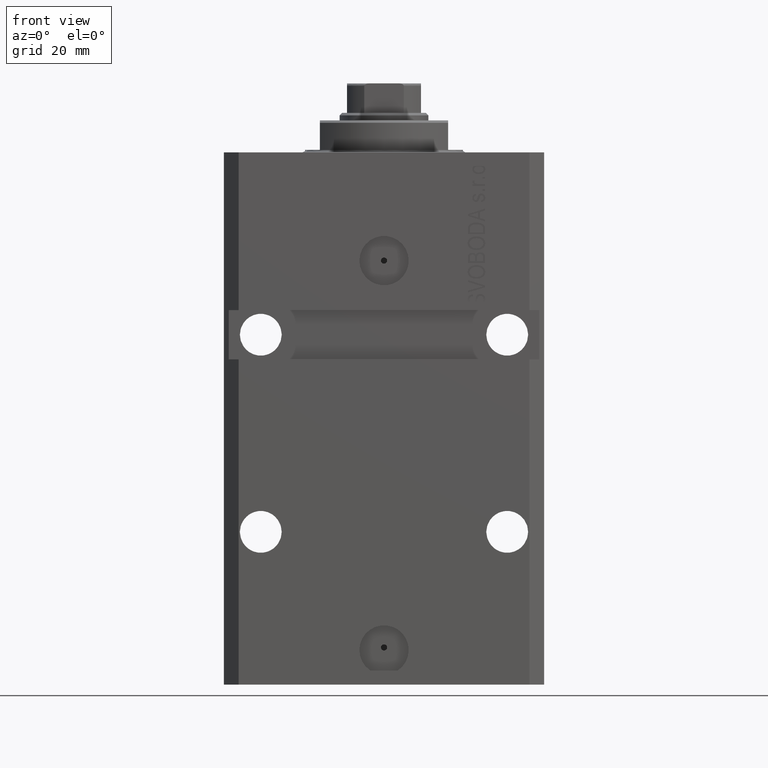
[diagram: clean part render]
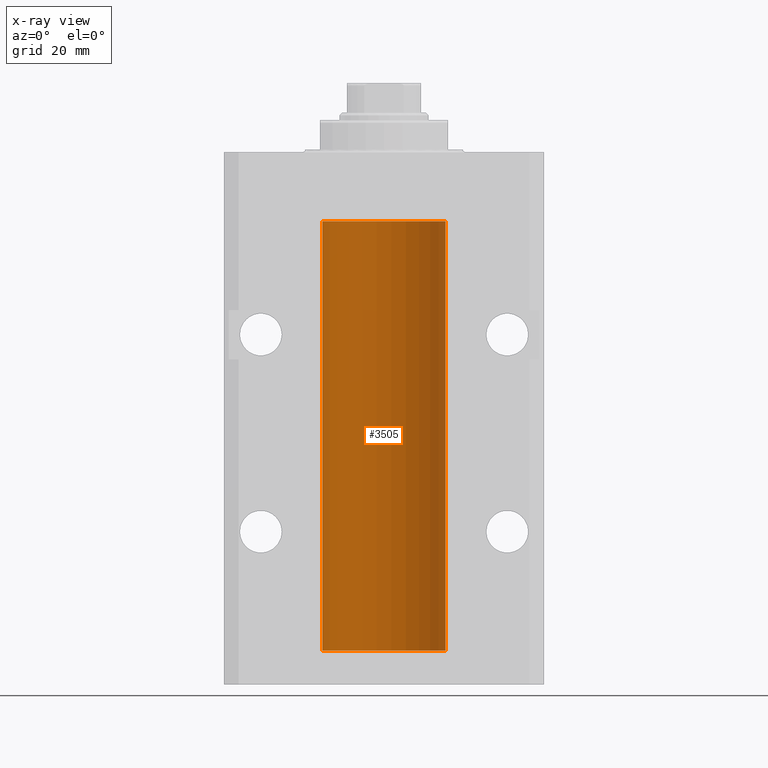
[diagram: x-ray — body ghosted, one internal face saturated and labeled with its STEP entity id]
A machine part, front view, then the same camera in x-ray: the body is ghosted and one INTERNAL B-rep face — a face not visible from any outside direction — is saturated and labeled: STEP entity #3505.
In plain terms, the highlighted cylindrical surface (partial cylindrical patch) has radius 12.5 mm, axis along (0, 0, 1).
Its self-contained STEP definition (entity closure, byte-faithful):
#848 = CARTESIAN_POINT ( 'NONE',  ( -12.50000000000000000, 1.530808498934191127E-15, -13.99999999999999822 ) ) ;
#903 = CARTESIAN_POINT ( 'NONE',  ( -12.50000000000000000, 1.530808498934191127E-15, -101.0999999999999943 ) ) ;
#1004 = CARTESIAN_POINT ( 'NONE',  ( -12.49011732893843529, 0.5003763274120274218, -22.38348111289288056 ) ) ;
#1601 = DIRECTION ( 'NONE',  ( -0.000000000000000000, -0.000000000000000000, 1.000000000000000000 ) ) ;
#1713 = CARTESIAN_POINT ( 'NONE',  ( -12.49915784441387068, 0.1636601911727947889, -21.39126818989430490 ) ) ;
#2887 = CARTESIAN_POINT ( 'NONE',  ( -12.49625855304193855, 0.3150454781037992369, -95.45402800297485157 ) ) ;
#3210 = CARTESIAN_POINT ( 'NONE',  ( -12.50000000000017941, 3.883381774819353300E-13, -96.62500000000359535 ) ) ;
#3505 = ADVANCED_FACE ( 'NONE', ( #20669 ), #35388, .F. ) ;
#5100 = CARTESIAN_POINT ( 'NONE',  ( -12.48520330846397997, 0.6088355886774127201, -22.16325431852561678 ) ) ;
#5571 = CARTESIAN_POINT ( 'NONE',  ( -12.50000000000017941, 3.883381646606358354E-13, -22.62500000000358824 ) ) ;
#5651 = CIRCLE ( 'NONE', #11830, 12.50000000000000000 ) ;
#6387 = DIRECTION ( 'NONE',  ( -0.000000000000000000, -0.000000000000000000, 1.000000000000000000 ) ) ;
#6916 = VERTEX_POINT ( 'NONE', #848 ) ;
#6963 = CIRCLE ( 'NONE', #33923, 12.50000000000000000 ) ;
#7870 = CARTESIAN_POINT ( 'NONE',  ( 12.50000000000000000, 0.000000000000000000, -13.99999999999999822 ) ) ;
#8420 = EDGE_LOOP ( 'NONE', ( #29382, #36445, #36833, #11185, #9563, #32653, #16821, #15909 ) ) ;
#8476 = CARTESIAN_POINT ( 'NONE',  ( -12.49631005746706691, 0.3253680783018527145, -22.55856740465392818 ) ) ;
#9183 = CARTESIAN_POINT ( 'NONE',  ( -12.48810268015257741, 0.5573155909661345886, -21.67347410093868376 ) ) ;
#9488 = VECTOR ( 'NONE', #1601, 1000.000000000000000 ) ;
#9563 = ORIENTED_EDGE ( 'NONE', *, *, #21819, .F. ) ;
#10136 = CARTESIAN_POINT ( 'NONE',  ( -12.48810268015257208, 0.5573155909661239304, -95.67347410093866245 ) ) ;
#10382 = CARTESIAN_POINT ( 'NONE',  ( -12.50000000000000000, -1.533333011935503619E-14, -95.37500000000000000 ) ) ;
#10699 = CARTESIAN_POINT ( 'NONE',  ( -12.50000000000000000, 1.530808498934191127E-15, -101.0999999999999943 ) ) ;
#11185 = ORIENTED_EDGE ( 'NONE', *, *, #23877, .T. ) ;
#11830 = AXIS2_PLACEMENT_3D ( 'NONE', #34826, #19859, #12863 ) ;
#12546 = B_SPLINE_CURVE_WITH_KNOTS ( 'NONE', 3,
 ( #38139, #30674, #1713, #16435, #27536, #9183, #31154, #35005, #5100, #23913, #1004, #8476, #45867, #5571 ),
 .UNSPECIFIED., .F., .F.,
 ( 4, 2, 2, 2, 2, 2, 4 ),
 ( 1.915261233043748719E-20, 0.0002442924852390970162, 0.0004885849704781940325, 0.0009771699409563878481, 0.001221462426195484702, 0.001465754911434581772, 0.001954339881912775696 ),
 .UNSPECIFIED. ) ;
#12863 = DIRECTION ( 'NONE',  ( 1.000000000000000000, 0.000000000000000000, 0.000000000000000000 ) ) ;
#13049 = CARTESIAN_POINT ( 'NONE',  ( 0.000000000000000000, 0.000000000000000000, -101.0999999999999943 ) ) ;
#13957 = AXIS2_PLACEMENT_3D ( 'NONE', #14172, #28887, #30289 ) ;
#14009 = CARTESIAN_POINT ( 'NONE',  ( -12.48436813453758809, 0.6249418250771133776, -95.83668996798924411 ) ) ;
#14172 = CARTESIAN_POINT ( 'NONE',  ( 0.000000000000000000, 0.000000000000000000, -101.0999999999999943 ) ) ;
#14338 = DIRECTION ( 'NONE',  ( -0.000000000000000000, -0.000000000000000000, 1.000000000000000000 ) ) ;
#14593 = CARTESIAN_POINT ( 'NONE',  ( -12.50000000000000000, -1.533333011935503619E-14, -95.37500000000000000 ) ) ;
#14880 = EDGE_CURVE ( 'NONE', #28207, #35662, #25928, .T. ) ;
#14942 = VERTEX_POINT ( 'NONE', #15766 ) ;
#15598 = EDGE_CURVE ( 'NONE', #33377, #32588, #29017, .T. ) ;
#15766 = CARTESIAN_POINT ( 'NONE',  ( -12.50000000000017941, 3.883381646606358354E-13, -22.62500000000358824 ) ) ;
#15909 = ORIENTED_EDGE ( 'NONE', *, *, #15598, .T. ) ;
#16435 = CARTESIAN_POINT ( 'NONE',  ( -12.49625855304194033, 0.3150454781038043439, -21.45402800297485513 ) ) ;
#16821 = ORIENTED_EDGE ( 'NONE', *, *, #37677, .F. ) ;
#17384 = CARTESIAN_POINT ( 'NONE',  ( -12.49915784441387068, 0.1636601911727893766, -95.39126818989430490 ) ) ;
#17857 = CARTESIAN_POINT ( 'NONE',  ( -12.48809959379011403, 0.5462151254764920916, -96.31461370481612505 ) ) ;
#18471 = VECTOR ( 'NONE', #6387, 1000.000000000000000 ) ;
#19859 = DIRECTION ( 'NONE',  ( 0.000000000000000000, 0.000000000000000000, 1.000000000000000000 ) ) ;
#20521 = EDGE_CURVE ( 'NONE', #46097, #14942, #12546, .T. ) ;
#20669 = FACE_OUTER_BOUND ( 'NONE', #8420, .T. ) ;
#21819 = EDGE_CURVE ( 'NONE', #46097, #6916, #34657, .T. ) ;
#23877 = EDGE_CURVE ( 'NONE', #35662, #6916, #5651, .T. ) ;
#23913 = CARTESIAN_POINT ( 'NONE',  ( -12.48809959379011580, 0.5462151254764976427, -22.31461370481611795 ) ) ;
#24472 = LINE ( 'NONE', #28103, #37300 ) ;
#24868 = CARTESIAN_POINT ( 'NONE',  ( -12.50000000000017941, 3.883381774819353300E-13, -96.62500000000359535 ) ) ;
#25192 = LINE ( 'NONE', #10699, #44500 ) ;
#25339 = CARTESIAN_POINT ( 'NONE',  ( -12.50000000000000000, 0.08260426088727979010, -95.37500000000004263 ) ) ;
#25583 = CARTESIAN_POINT ( 'NONE',  ( -12.50000000000000000, 5.362667643464675182E-18, -21.37499999999999645 ) ) ;
#25729 = EDGE_CURVE ( 'NONE', #35485, #32588, #24472, .T. ) ;
#25928 = LINE ( 'NONE', #36056, #18471 ) ;
#27536 = CARTESIAN_POINT ( 'NONE',  ( -12.49422197749724184, 0.3843754434364375916, -21.50047099568095632 ) ) ;
#28103 = CARTESIAN_POINT ( 'NONE',  ( -12.50000000000000000, 1.530808498934191127E-15, -101.0999999999999943 ) ) ;
#28207 = VERTEX_POINT ( 'NONE', #35917 ) ;
#28260 = DIRECTION ( 'NONE',  ( 0.000000000000000000, 0.000000000000000000, 1.000000000000000000 ) ) ;
#28887 = DIRECTION ( 'NONE',  ( -0.000000000000000000, -0.000000000000000000, 1.000000000000000000 ) ) ;
#29017 = B_SPLINE_CURVE_WITH_KNOTS ( 'NONE', 3,
 ( #10382, #25339, #17384, #2887, #32102, #10136, #14009, #47045, #36188, #17857, #29204, #43913, #32580, #24868 ),
 .UNSPECIFIED., .F., .F.,
 ( 4, 2, 2, 2, 2, 2, 4 ),
 ( 3.461883380293545058E-18, 0.0002442924852390828132, 0.0004885849704781621569, 0.0009771699409563503348, 0.001221462426195465186, 0.001465754911434580037, 0.001954339881912780900 ),
 .UNSPECIFIED. ) ;
#29204 = CARTESIAN_POINT ( 'NONE',  ( -12.49011732893843707, 0.5003763274120197613, -96.38348111289288056 ) ) ;
#29382 = ORIENTED_EDGE ( 'NONE', *, *, #25729, .F. ) ;
#30289 = DIRECTION ( 'NONE',  ( 1.000000000000000000, 0.000000000000000000, 0.000000000000000000 ) ) ;
#30674 = CARTESIAN_POINT ( 'NONE',  ( -12.50000000000000000, 0.08260426088729212746, -21.37500000000000000 ) ) ;
#31154 = CARTESIAN_POINT ( 'NONE',  ( -12.48436813453758809, 0.6249418250771192618, -21.83668996798922990 ) ) ;
#31708 = DIRECTION ( 'NONE',  ( -0.000000000000000000, -0.000000000000000000, 1.000000000000000000 ) ) ;
#32102 = CARTESIAN_POINT ( 'NONE',  ( -12.49422197749724006, 0.3843754434364255457, -95.50047099568097053 ) ) ;
#32580 = CARTESIAN_POINT ( 'NONE',  ( -12.49999999999999289, 0.1631761135151224562, -96.62499999999987210 ) ) ;
#32588 = VERTEX_POINT ( 'NONE', #3210 ) ;
#32653 = ORIENTED_EDGE ( 'NONE', *, *, #20521, .T. ) ;
#33377 = VERTEX_POINT ( 'NONE', #14593 ) ;
#33923 = AXIS2_PLACEMENT_3D ( 'NONE', #13049, #28260, #42485 ) ;
#34657 = LINE ( 'NONE', #903, #9488 ) ;
#34826 = CARTESIAN_POINT ( 'NONE',  ( 0.000000000000000000, 0.000000000000000000, -13.99999999999999822 ) ) ;
#35005 = CARTESIAN_POINT ( 'NONE',  ( -12.48436376893640620, 0.6250290278979917513, -22.08132082824473841 ) ) ;
#35388 = CYLINDRICAL_SURFACE ( 'NONE', #13957, 12.50000000000000000 ) ;
#35485 = VERTEX_POINT ( 'NONE', #47515 ) ;
#35662 = VERTEX_POINT ( 'NONE', #7870 ) ;
#35917 = CARTESIAN_POINT ( 'NONE',  ( 12.50000000000000000, 0.000000000000000000, -101.0999999999999943 ) ) ;
#36056 = CARTESIAN_POINT ( 'NONE',  ( 12.50000000000000000, 0.000000000000000000, -101.0999999999999943 ) ) ;
#36188 = CARTESIAN_POINT ( 'NONE',  ( -12.48520330846397997, 0.6088355886774068360, -96.16325431852560257 ) ) ;
#36445 = ORIENTED_EDGE ( 'NONE', *, *, #47731, .F. ) ;
#36833 = ORIENTED_EDGE ( 'NONE', *, *, #14880, .T. ) ;
#37300 = VECTOR ( 'NONE', #31708, 1000.000000000000000 ) ;
#37677 = EDGE_CURVE ( 'NONE', #33377, #14942, #25192, .T. ) ;
#38139 = CARTESIAN_POINT ( 'NONE',  ( -12.50000000000000000, 5.362667643464675182E-18, -21.37499999999999645 ) ) ;
#42485 = DIRECTION ( 'NONE',  ( 1.000000000000000000, 0.000000000000000000, 0.000000000000000000 ) ) ;
#43913 = CARTESIAN_POINT ( 'NONE',  ( -12.49631005746706514, 0.3253680783018455536, -96.55856740465395660 ) ) ;
#44500 = VECTOR ( 'NONE', #14338, 1000.000000000000000 ) ;
#45867 = CARTESIAN_POINT ( 'NONE',  ( -12.49999999999999289, 0.1631761135151243158, -22.62499999999984013 ) ) ;
#46097 = VERTEX_POINT ( 'NONE', #25583 ) ;
#47045 = CARTESIAN_POINT ( 'NONE',  ( -12.48436376893640087, 0.6250290278979868663, -96.08132082824471354 ) ) ;
#47515 = CARTESIAN_POINT ( 'NONE',  ( -12.50000000000000000, 1.530808498934191127E-15, -101.0999999999999943 ) ) ;
#47731 = EDGE_CURVE ( 'NONE', #28207, #35485, #6963, .T. ) ;